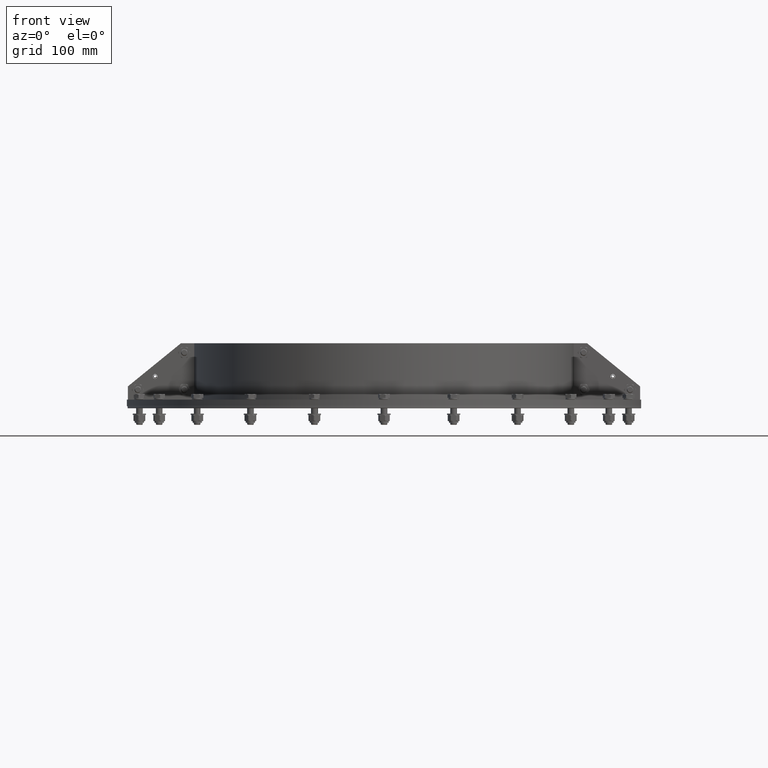
[diagram: clean part render]
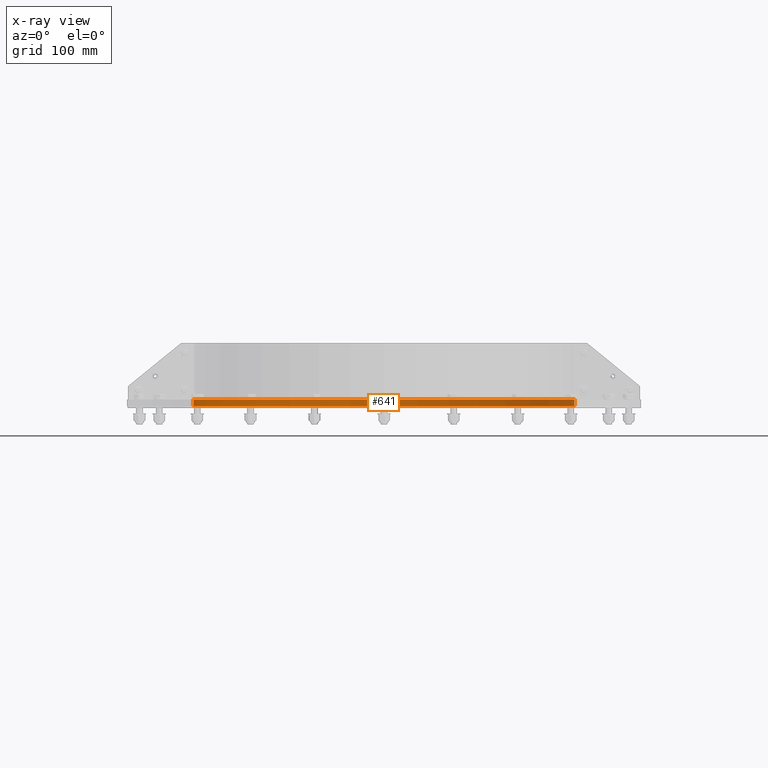
[diagram: x-ray — body ghosted, one internal face saturated and labeled with its STEP entity id]
A machine part, front view, then the same camera in x-ray: the body is ghosted and one INTERNAL B-rep face — a face not visible from any outside direction — is saturated and labeled: STEP entity #641.
In plain terms, the highlighted cylindrical surface (partial cylindrical patch) has radius 287 mm, axis along (-0, -0, 1).
Its self-contained STEP definition (entity closure, byte-faithful):
#414=CARTESIAN_POINT('',(286.99993031358042,0.2,10.0));
#415=VERTEX_POINT('',#414);
#422=CARTESIAN_POINT('',(286.99993031358042,0.2,0.0));
#423=VERTEX_POINT('',#422);
#424=CARTESIAN_POINT('',(286.99993031358042,0.2,0.0));
#425=DIRECTION('',(0.0,0.0,1.0));
#426=VECTOR('',#425,10.0);
#427=LINE('',#424,#426);
#428=EDGE_CURVE('',#423,#415,#427,.T.);
#454=CARTESIAN_POINT('',(-286.99993031358042,0.2,0.0));
#455=VERTEX_POINT('',#454);
#462=CARTESIAN_POINT('',(-286.99993031358042,0.2,10.0));
#463=VERTEX_POINT('',#462);
#464=CARTESIAN_POINT('',(-286.99993031358042,0.2,10.0));
#465=DIRECTION('',(0.0,0.0,-1.0));
#466=VECTOR('',#465,10.0);
#467=LINE('',#464,#466);
#468=EDGE_CURVE('',#463,#455,#467,.T.);
#493=CARTESIAN_POINT('',(0.0,0.0,0.0));
#494=DIRECTION('',(0.0,0.0,1.0));
#495=DIRECTION('',(-1.0,0.0,0.0));
#496=AXIS2_PLACEMENT_3D('',#493,#494,#495);
#497=CIRCLE('',#496,287.0);
#498=EDGE_CURVE('',#423,#455,#497,.T.);
#624=CARTESIAN_POINT('',(0.0,0.0,0.0));
#625=DIRECTION('',(0.0,0.0,1.0));
#626=DIRECTION('',(-1.0,0.0,0.0));
#627=AXIS2_PLACEMENT_3D('',#624,#625,#626);
#628=CYLINDRICAL_SURFACE('',#627,287.0);
#629=ORIENTED_EDGE('',*,*,#468,.T.);
#630=ORIENTED_EDGE('',*,*,#498,.F.);
#631=ORIENTED_EDGE('',*,*,#428,.T.);
#632=CARTESIAN_POINT('',(0.0,0.0,10.0));
#633=DIRECTION('',(0.0,0.0,-1.0));
#634=DIRECTION('',(-1.0,0.0,0.0));
#635=AXIS2_PLACEMENT_3D('',#632,#633,#634);
#636=CIRCLE('',#635,287.0);
#637=EDGE_CURVE('',#463,#415,#636,.T.);
#638=ORIENTED_EDGE('',*,*,#637,.F.);
#639=EDGE_LOOP('',(#629,#630,#631,#638));
#640=FACE_OUTER_BOUND('',#639,.T.);
#641=ADVANCED_FACE('',(#640),#628,.F.);